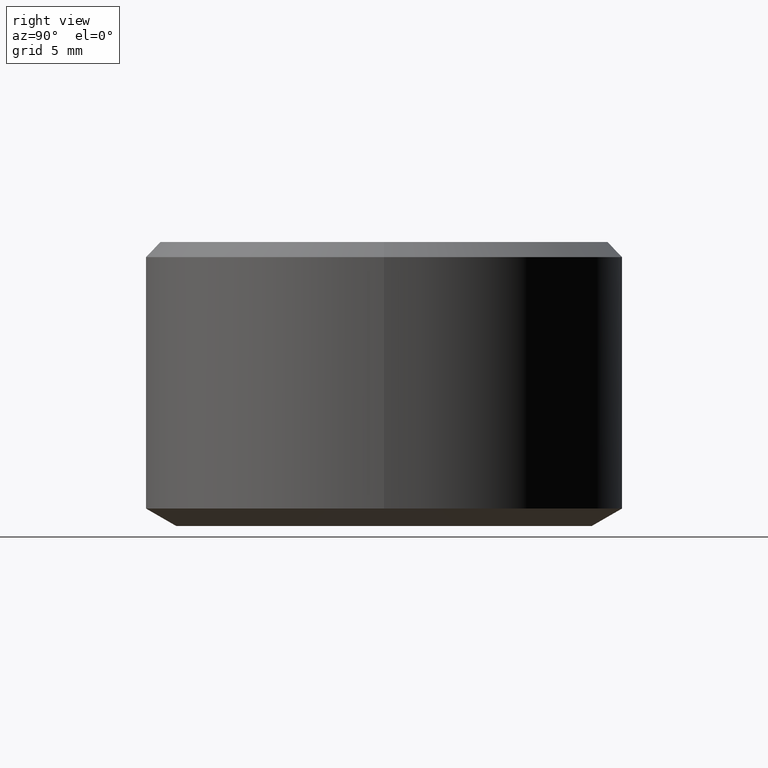
[diagram: clean part render]
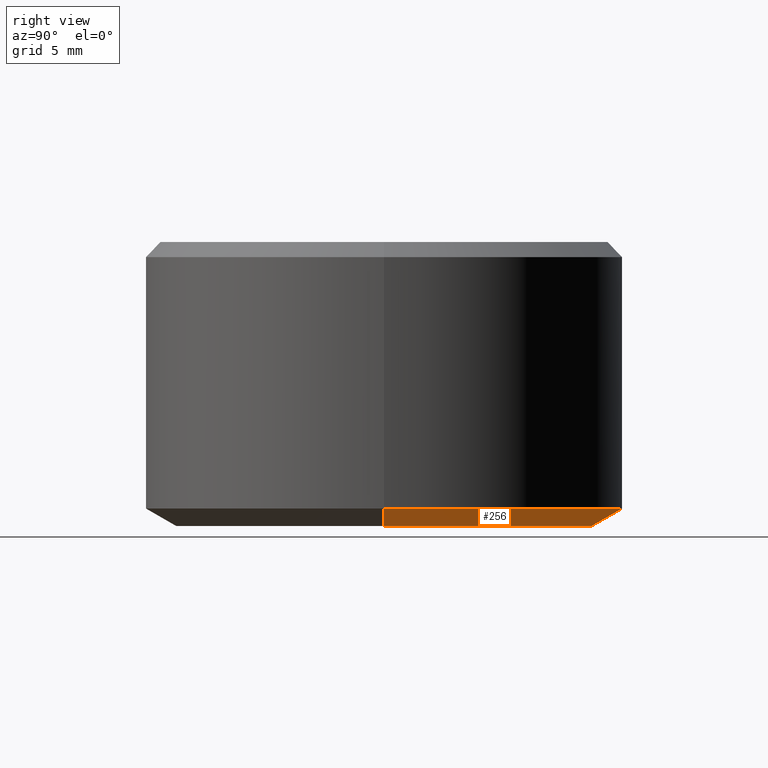
[diagram: same view with one face highlighted and labeled with its STEP entity id]
A machine part, right view. The second image highlights one B-rep face of the part: STEP entity #256.
In plain terms, the highlighted conical surface has half-angle 60 deg.
Its self-contained STEP definition (entity closure, byte-faithful):
#1 = DIRECTION ( 'NONE',  ( 0.8660254037844379300, 0.0000000000000000000, 0.5000000000000011100 ) ) ;
#10 = CARTESIAN_POINT ( 'NONE',  ( 0.0000000000000000000, 0.0000000000000000000, 0.6928203230271989800 ) ) ;
#23 = EDGE_CURVE ( 'NONE', #284, #342, #277, .T. ) ;
#62 = AXIS2_PLACEMENT_3D ( 'NONE', #72, #136, #176 ) ;
#72 = CARTESIAN_POINT ( 'NONE',  ( 0.0000000000000000000, 0.0000000000000000000, 0.6928203230271989800 ) ) ;
#79 = ORIENTED_EDGE ( 'NONE', *, *, #328, .T. ) ;
#81 = CONICAL_SURFACE ( 'NONE', #62, 9.500000000000008900, 1.047197551196596500 ) ;
#85 = DIRECTION ( 'NONE',  ( 1.000000000000000000, 0.0000000000000000000, 0.0000000000000000000 ) ) ;
#95 = EDGE_LOOP ( 'NONE', ( #324, #79, #192, #205 ) ) ;
#97 = FACE_OUTER_BOUND ( 'NONE', #95, .T. ) ;
#110 = EDGE_CURVE ( 'NONE', #154, #284, #202, .T. ) ;
#125 = CARTESIAN_POINT ( 'NONE',  ( 9.500000000000008900, 0.0000000000000000000, 0.6928203230271989800 ) ) ;
#136 = DIRECTION ( 'NONE',  ( -0.0000000000000000000, -0.0000000000000000000, 1.000000000000000000 ) ) ;
#154 = VERTEX_POINT ( 'NONE', #184 ) ;
#156 = AXIS2_PLACEMENT_3D ( 'NONE', #10, #270, #194 ) ;
#157 = EDGE_CURVE ( 'NONE', #154, #228, #187, .T. ) ;
#176 = DIRECTION ( 'NONE',  ( 1.000000000000000000, 0.0000000000000000000, 0.0000000000000000000 ) ) ;
#177 = CARTESIAN_POINT ( 'NONE',  ( 0.0000000000000000000, 0.0000000000000000000, -2.706168622523819100E-013 ) ) ;
#184 = CARTESIAN_POINT ( 'NONE',  ( 8.300000000000153500, 0.0000000000000000000, -2.706168622523819100E-013 ) ) ;
#187 = CIRCLE ( 'NONE', #294, 8.300000000000153500 ) ;
#192 = ORIENTED_EDGE ( 'NONE', *, *, #23, .F. ) ;
#194 = DIRECTION ( 'NONE',  ( 1.000000000000000000, 0.0000000000000000000, 0.0000000000000000000 ) ) ;
#199 = CARTESIAN_POINT ( 'NONE',  ( -9.500000000000008900, 1.163414459189986700E-015, 0.6928203230271989800 ) ) ;
#202 = LINE ( 'NONE', #320, #319 ) ;
#205 = ORIENTED_EDGE ( 'NONE', *, *, #110, .F. ) ;
#206 = DIRECTION ( 'NONE',  ( -0.0000000000000000000, -0.0000000000000000000, 1.000000000000000000 ) ) ;
#228 = VERTEX_POINT ( 'NONE', #345 ) ;
#256 = ADVANCED_FACE ( 'NONE', ( #97 ), #81, .T. ) ;
#270 = DIRECTION ( 'NONE',  ( -0.0000000000000000000, -0.0000000000000000000, 1.000000000000000000 ) ) ;
#273 = VECTOR ( 'NONE', #285, 1000.000000000000100 ) ;
#277 = CIRCLE ( 'NONE', #156, 9.500000000000008900 ) ;
#283 = LINE ( 'NONE', #199, #273 ) ;
#284 = VERTEX_POINT ( 'NONE', #125 ) ;
#285 = DIRECTION ( 'NONE',  ( -0.8660254037844379300, 1.060575238724906100E-016, 0.5000000000000011100 ) ) ;
#294 = AXIS2_PLACEMENT_3D ( 'NONE', #177, #206, #85 ) ;
#319 = VECTOR ( 'NONE', #1, 1000.000000000000100 ) ;
#320 = CARTESIAN_POINT ( 'NONE',  ( 9.500000000000008900, 0.0000000000000000000, 0.6928203230271989800 ) ) ;
#324 = ORIENTED_EDGE ( 'NONE', *, *, #157, .T. ) ;
#328 = EDGE_CURVE ( 'NONE', #228, #342, #283, .T. ) ;
#332 = CARTESIAN_POINT ( 'NONE',  ( -9.500000000000008900, 1.163414459189986700E-015, 0.6928203230271989800 ) ) ;
#342 = VERTEX_POINT ( 'NONE', #332 ) ;
#345 = CARTESIAN_POINT ( 'NONE',  ( -8.300000000000153500, 1.089935651241154000E-015, -2.706168622523819100E-013 ) ) ;